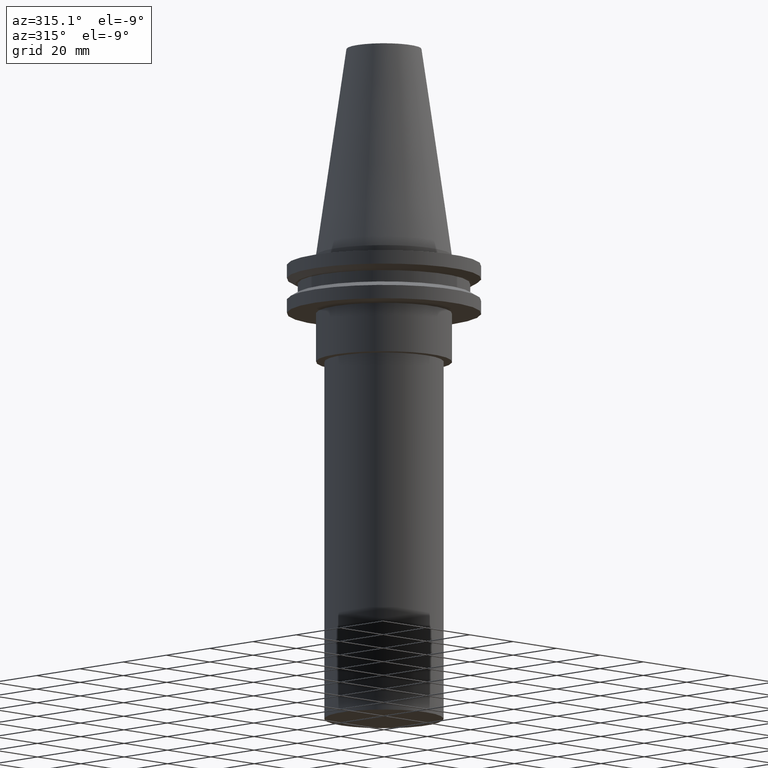
[diagram: clean part render]
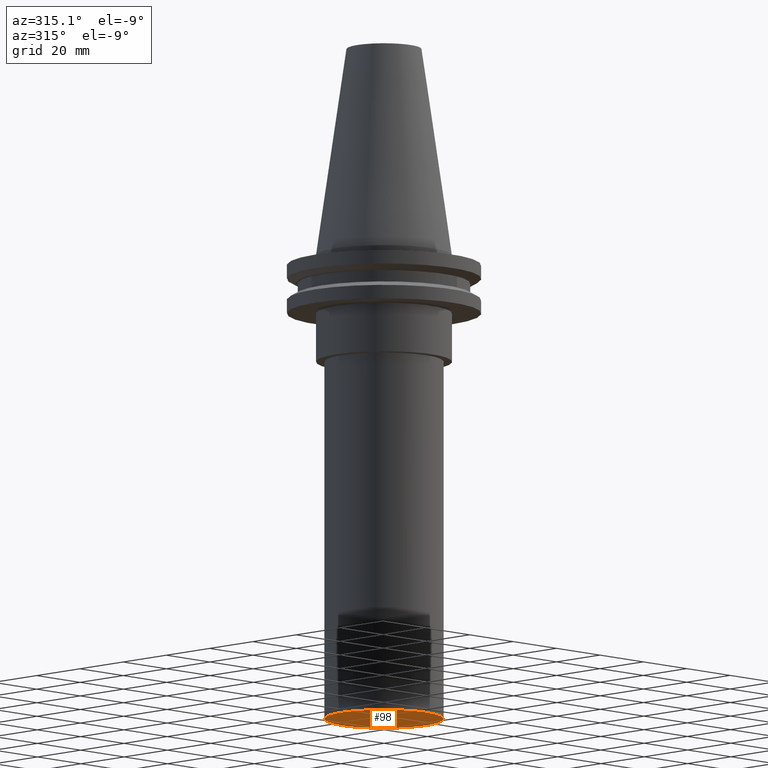
[diagram: same view with one face highlighted and labeled with its STEP entity id]
A machine part, auxiliary view. The second image highlights one B-rep face of the part: STEP entity #98.
In plain terms, the highlighted planar face has unit normal (-0, 0, -1).
Its self-contained STEP definition (entity closure, byte-faithful):
#20 = FACE_OUTER_BOUND ( 'NONE', #372, .T. ) ;
#23 = DIRECTION ( 'NONE',  ( -0.000000000000000000, 8.721520231316460916E-17, -1.000000000000000000 ) ) ;
#34 = EDGE_CURVE ( 'NONE', #378, #378, #265, .T. ) ;
#54 = PLANE ( 'NONE',  #153 ) ;
#67 = ORIENTED_EDGE ( 'NONE', *, *, #34, .T. ) ;
#82 = CARTESIAN_POINT ( 'NONE',  ( 0.000000000000000000, 19.50000000000000000, -153.0000000000000000 ) ) ;
#98 = ADVANCED_FACE ( 'NONE', ( #20 ), #54, .T. ) ;
#111 = DIRECTION ( 'NONE',  ( 0.000000000000000000, 1.000000000000000000, 0.000000000000000000 ) ) ;
#143 = DIRECTION ( 'NONE',  ( -0.000000000000000000, 8.721520231316460916E-17, -1.000000000000000000 ) ) ;
#153 = AXIS2_PLACEMENT_3D ( 'NONE', #82, #23, #174 ) ;
#161 = CARTESIAN_POINT ( 'NONE',  ( 0.000000000000000000, 19.50000000000000000, -153.0000000000000000 ) ) ;
#174 = DIRECTION ( 'NONE',  ( 0.000000000000000000, 1.000000000000000000, 8.721520231316460916E-17 ) ) ;
#262 = CARTESIAN_POINT ( 'NONE',  ( 0.000000000000000000, 1.028703311283776507E-14, -153.0000000000000000 ) ) ;
#265 = CIRCLE ( 'NONE', #349, 19.49999999999998934 ) ;
#349 = AXIS2_PLACEMENT_3D ( 'NONE', #262, #143, #111 ) ;
#372 = EDGE_LOOP ( 'NONE', ( #67 ) ) ;
#378 = VERTEX_POINT ( 'NONE', #161 ) ;